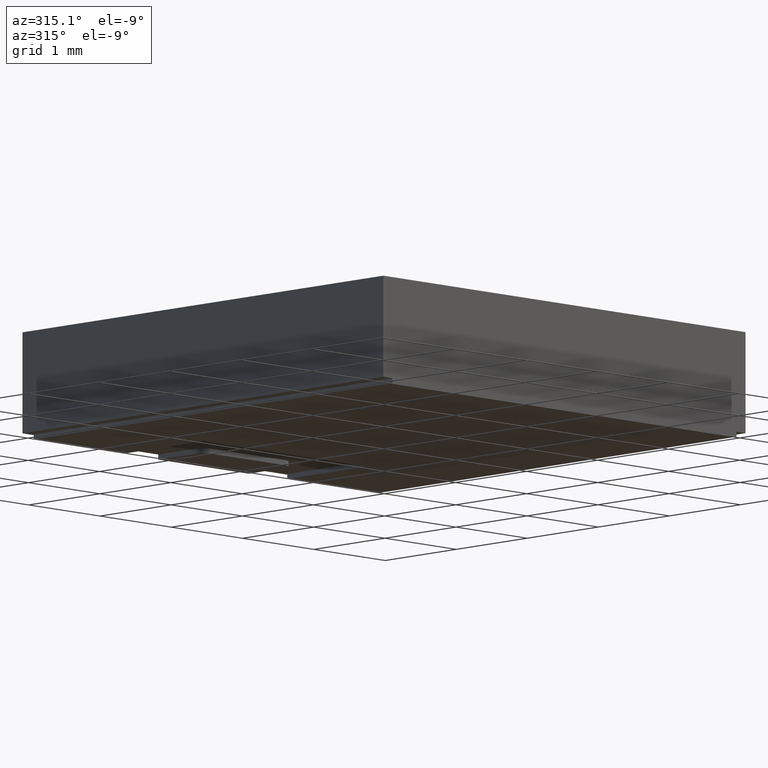
[diagram: clean part render]
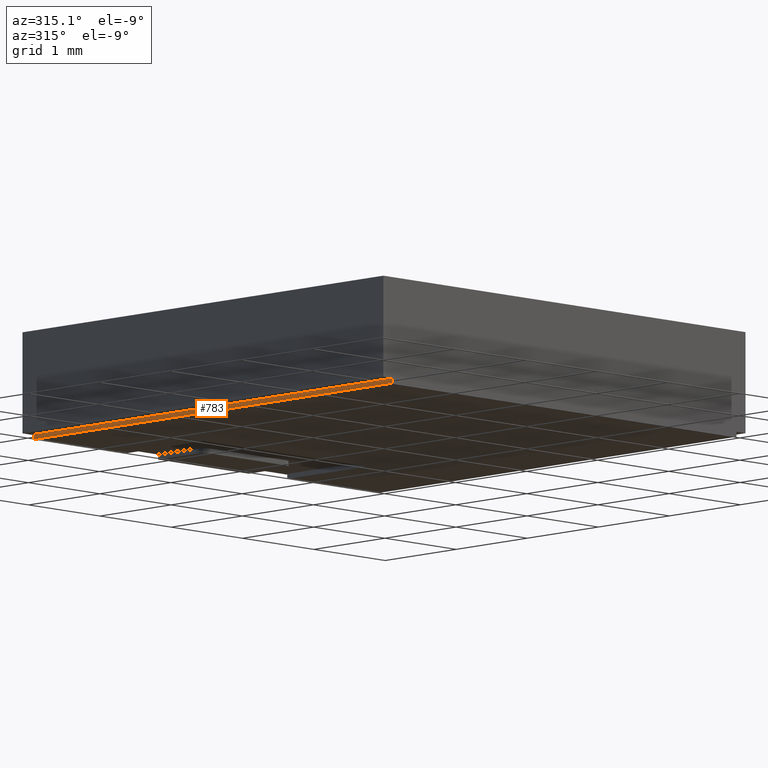
[diagram: same view with one face highlighted and labeled with its STEP entity id]
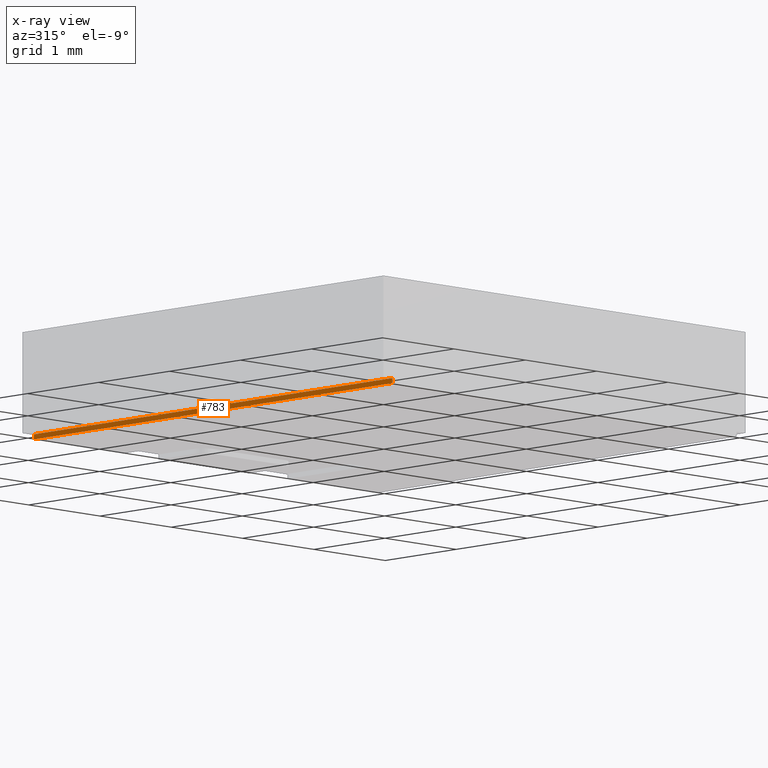
[diagram: x-ray of the same camera — body ghosted, the highlighted face saturated]
A machine part, auxiliary view. The second image highlights one B-rep face of the part: STEP entity #783.
The next image is the same camera in x-ray: the body ghosted, the highlighted face saturated — about 0% of this face is hidden behind the body in this view.
In plain terms, the highlighted planar face has unit normal (1, 0, 0).
Its self-contained STEP definition (entity closure, byte-faithful):
#8 = PLANE ( 'NONE',  #370 ) ;
#90 = CARTESIAN_POINT ( 'NONE',  ( -0.09499999999999886313, 0.09875000000001676881, 0.002000000000000000042 ) ) ;
#105 = DIRECTION ( 'NONE',  ( -0.000000000000000000, -1.000000000000000000, -0.000000000000000000 ) ) ;
#159 = VECTOR ( 'NONE', #517, 39.37007874015748143 ) ;
#168 = LINE ( 'NONE', #639, #759 ) ;
#195 = FACE_OUTER_BOUND ( 'NONE', #683, .T. ) ;
#209 = EDGE_CURVE ( 'NONE', #439, #241, #168, .T. ) ;
#229 = EDGE_CURVE ( 'NONE', #784, #286, #775, .T. ) ;
#232 = CARTESIAN_POINT ( 'NONE',  ( -0.09499999999999886313, -0.1000000000000014211, 0.000000000000000000 ) ) ;
#241 = VERTEX_POINT ( 'NONE', #278 ) ;
#247 = CARTESIAN_POINT ( 'NONE',  ( -0.09499999999999886313, 0.09875000000001676881, 0.000000000000000000 ) ) ;
#252 = ORIENTED_EDGE ( 'NONE', *, *, #229, .T. ) ;
#278 = CARTESIAN_POINT ( 'NONE',  ( -0.09499999999999886313, -0.1000000000000014211, 0.002000000000000000042 ) ) ;
#286 = VERTEX_POINT ( 'NONE', #707 ) ;
#311 = ORIENTED_EDGE ( 'NONE', *, *, #625, .F. ) ;
#330 = LINE ( 'NONE', #708, #564 ) ;
#370 = AXIS2_PLACEMENT_3D ( 'NONE', #448, #730, #436 ) ;
#393 = DIRECTION ( 'NONE',  ( -0.000000000000000000, -0.000000000000000000, -1.000000000000000000 ) ) ;
#414 = DIRECTION ( 'NONE',  ( -0.000000000000000000, -1.000000000000000000, -0.000000000000000000 ) ) ;
#436 = DIRECTION ( 'NONE',  ( 0.000000000000000000, 0.000000000000000000, -1.000000000000000000 ) ) ;
#439 = VERTEX_POINT ( 'NONE', #749 ) ;
#448 = CARTESIAN_POINT ( 'NONE',  ( -0.09499999999999886313, -0.1000000000000014211, 0.002000000000000000042 ) ) ;
#459 = ORIENTED_EDGE ( 'NONE', *, *, #209, .F. ) ;
#517 = DIRECTION ( 'NONE',  ( -0.000000000000000000, -0.000000000000000000, -1.000000000000000000 ) ) ;
#564 = VECTOR ( 'NONE', #393, 39.37007874015748143 ) ;
#578 = EDGE_CURVE ( 'NONE', #439, #784, #703, .T. ) ;
#625 = EDGE_CURVE ( 'NONE', #241, #286, #330, .T. ) ;
#639 = CARTESIAN_POINT ( 'NONE',  ( -0.09499999999999886313, -0.1000000000000014211, 0.002000000000000000042 ) ) ;
#683 = EDGE_LOOP ( 'NONE', ( #252, #311, #459, #742 ) ) ;
#703 = LINE ( 'NONE', #90, #159 ) ;
#707 = CARTESIAN_POINT ( 'NONE',  ( -0.09499999999999886313, -0.1000000000000014211, 0.000000000000000000 ) ) ;
#708 = CARTESIAN_POINT ( 'NONE',  ( -0.09499999999999886313, -0.1000000000000014211, 0.002000000000000000042 ) ) ;
#717 = VECTOR ( 'NONE', #414, 39.37007874015748143 ) ;
#730 = DIRECTION ( 'NONE',  ( 1.000000000000000000, 0.000000000000000000, 0.000000000000000000 ) ) ;
#742 = ORIENTED_EDGE ( 'NONE', *, *, #578, .T. ) ;
#749 = CARTESIAN_POINT ( 'NONE',  ( -0.09499999999999886313, 0.09875000000001676881, 0.002000000000000000042 ) ) ;
#759 = VECTOR ( 'NONE', #105, 39.37007874015748143 ) ;
#775 = LINE ( 'NONE', #232, #717 ) ;
#783 = ADVANCED_FACE ( 'NONE', ( #195 ), #8, .F. ) ;
#784 = VERTEX_POINT ( 'NONE', #247 ) ;